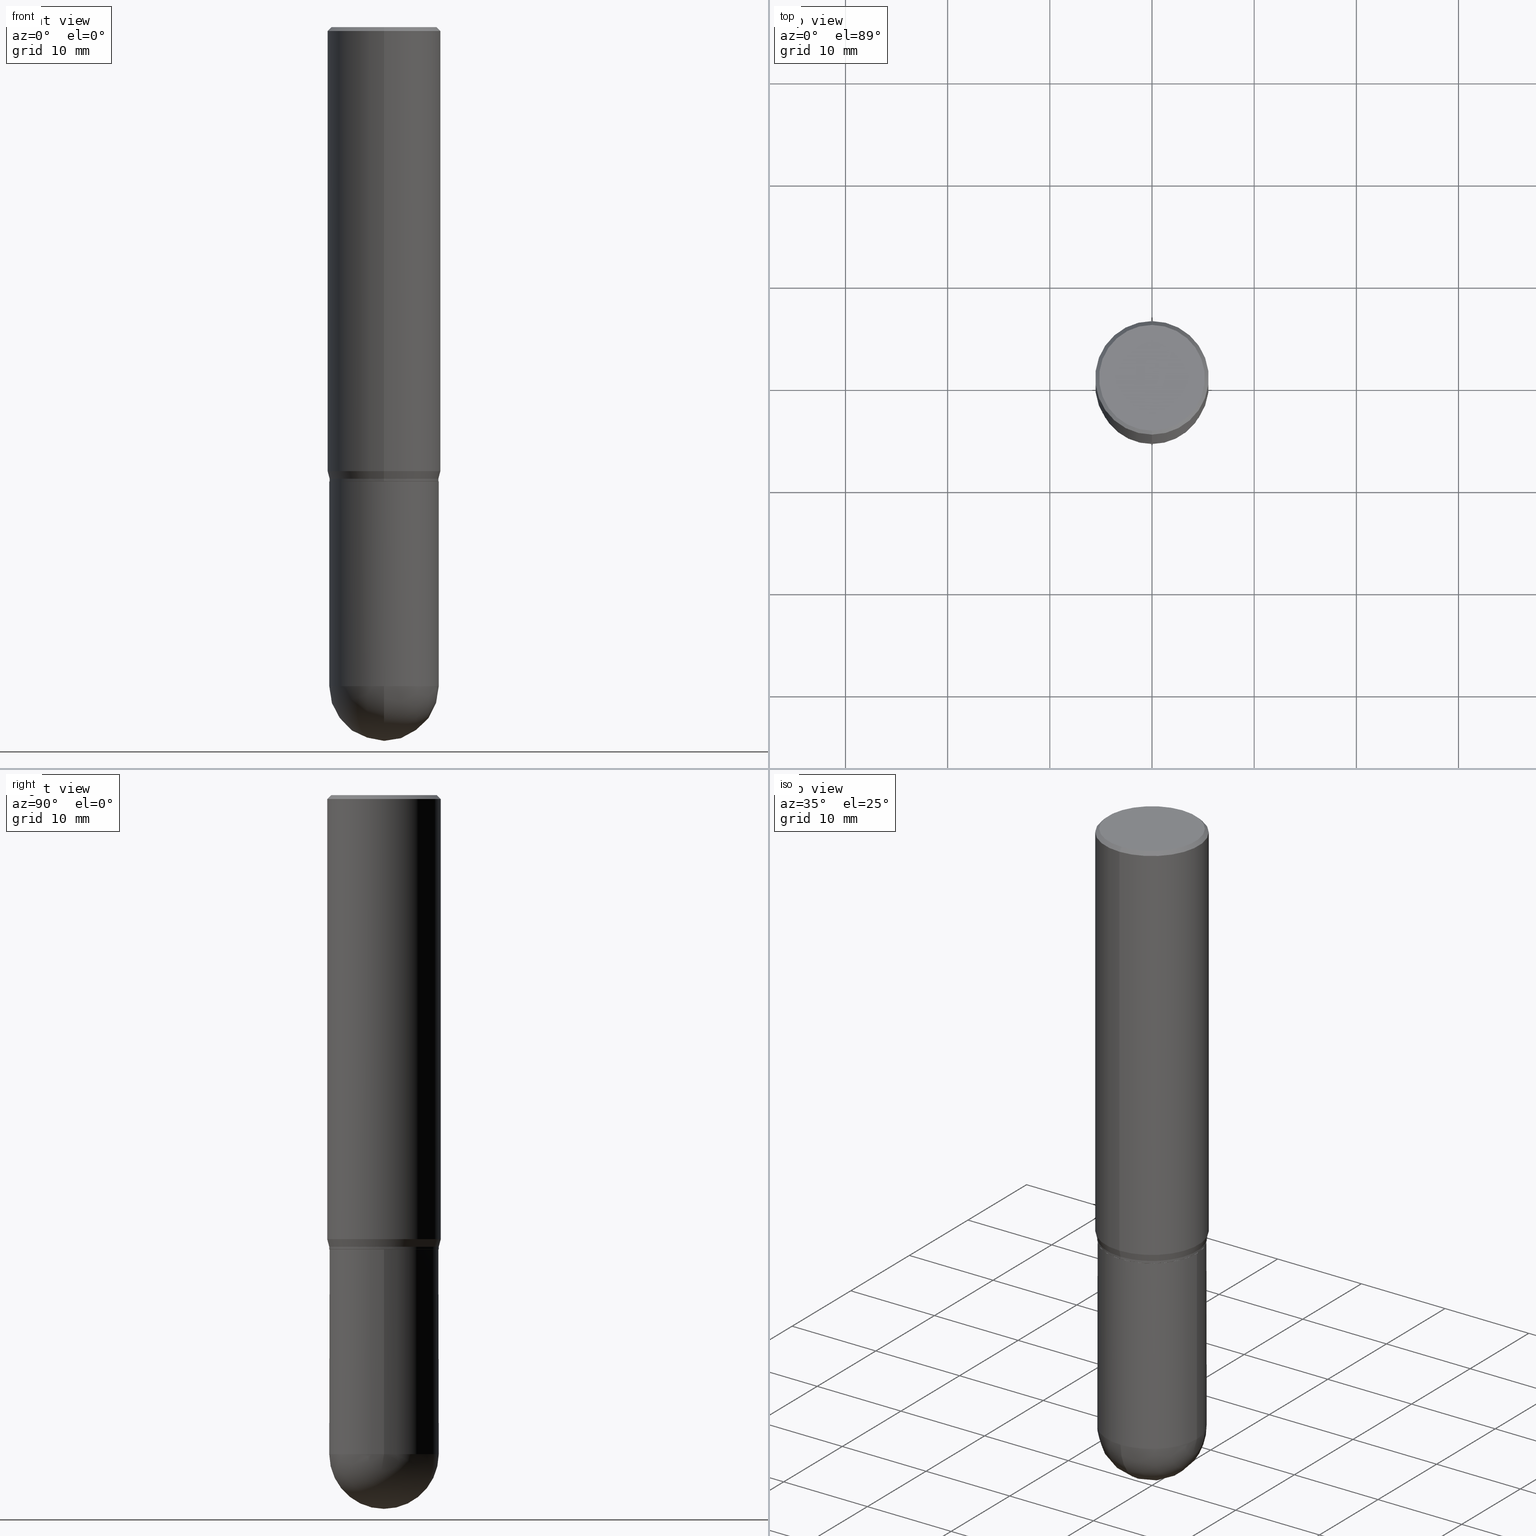
[diagram: canonical four-view strip — front | top / right | iso, engineering-drawing reading convention]
A machine part, canonical four-view strip (front | top / right | iso — engineering-drawing reading convention). The complete STEP part file that produces these views, byte-faithful:
ISO-10303-21;
HEADER;
FILE_DESCRIPTION (( 'STEP AP203' ),
    '1' );
FILE_NAME ('39054.STEP',
    '2024-03-08T12:44:04',
    ( '' ),
    ( '' ),
    'SwSTEP 2.0',
    'SolidWorks 2023',
    '' );
FILE_SCHEMA (( 'CONFIG_CONTROL_DESIGN' ));
ENDSEC;

DATA;
#1 = AXIS2_PLACEMENT_3D ( 'NONE', #122, #212, #287 ) ;
#2 = LOCAL_TIME ( 7, 44, 4.000000000000000000, #240 ) ;
#3 = DIRECTION ( 'NONE',  ( -2.445224538422357859E-29, 3.491831144182302259E-15, 1.000000000000000000 ) ) ;
#4 = DIRECTION ( 'NONE',  ( 1.000000000000000000, -6.982962677686265133E-15, 0.000000000000000000 ) ) ;
#5 = ORIENTED_EDGE ( 'NONE', *, *, #102, .F. ) ;
#6 = CARTESIAN_POINT ( 'NONE',  ( -1.527523085743870054E-15, -0.2187500000000000555, -0.01499999999999939403 ) ) ;
#7 = ORIENTED_EDGE ( 'NONE', *, *, #279, .F. ) ;
#8 = ADVANCED_FACE ( 'NONE', ( #235 ), #278, .T. ) ;
#9 = SECURITY_CLASSIFICATION_LEVEL ( 'unclassified' ) ;
#10 = ORIENTED_EDGE ( 'NONE', *, *, #472, .F. ) ;
#11 = CONICAL_SURFACE ( 'NONE', #66, 0.2104499999999999982, 0.7853981633974824739 ) ;
#12 = CARTESIAN_POINT ( 'NONE',  ( 3.667836807633575149E-31, -5.237746716273508633E-17, -0.01500000000000015730 ) ) ;
#13 = PERSON_AND_ORGANIZATION ( #94, #239 ) ;
#14 = FACE_OUTER_BOUND ( 'NONE', #366, .T. ) ;
#15 = ADVANCED_FACE ( 'NONE', ( #391 ), #79, .T. ) ;
#16 = LINE ( 'NONE', #330, #18 ) ;
#17 = APPROVAL_ROLE ( '' ) ;
#18 = VECTOR ( 'NONE', #491, 39.37007874015748854 ) ;
#19 = AXIS2_PLACEMENT_3D ( 'NONE', #478, #120, #349 ) ;
#20 = DIRECTION ( 'NONE',  ( -2.445224538422357859E-29, 3.491831144182302259E-15, 1.000000000000000000 ) ) ;
#21 = CC_DESIGN_PERSON_AND_ORGANIZATION_ASSIGNMENT ( #169, #332, ( #42 ) ) ;
#22 = FACE_OUTER_BOUND ( 'NONE', #436, .T. ) ;
#23 = ORIENTED_EDGE ( 'NONE', *, *, #29, .F. ) ;
#24 = DIRECTION ( 'NONE',  ( -6.982962677686266711E-15, -1.000000000000000000, 3.894295072935514223E-15 ) ) ;
#25 = ORIENTED_EDGE ( 'NONE', *, *, #458, .T. ) ;
#26 = VECTOR ( 'NONE', #277, 39.37007874015748143 ) ;
#27 = ORIENTED_EDGE ( 'NONE', *, *, #156, .F. ) ;
#28 = CARTESIAN_POINT ( 'NONE',  ( -1.500733937012521740E-15, -0.2187500000000000555, -0.01499999999999939403 ) ) ;
#29 = EDGE_CURVE ( 'NONE', #388, #317, #98, .T. ) ;
#30 = DIRECTION ( 'NONE',  ( 6.982962677686265922E-15, 1.000000000000000000, 0.000000000000000000 ) ) ;
#31 = FACE_OUTER_BOUND ( 'NONE', #304, .T. ) ;
#32 = AXIS2_PLACEMENT_3D ( 'NONE', #246, #403, #168 ) ;
#33 = AXIS2_PLACEMENT_3D ( 'NONE', #249, #327, #52 ) ;
#34 = LINE ( 'NONE', #310, #378 ) ;
#35 = ORIENTED_EDGE ( 'NONE', *, *, #50, .F. ) ;
#36 = EDGE_LOOP ( 'NONE', ( #428, #177, #207, #135 ) ) ;
#37 = EDGE_CURVE ( 'NONE', #288, #432, #153, .T. ) ;
#38 = CARTESIAN_POINT ( 'NONE',  ( 0.000000000000000000, 0.000000000000000000, 0.000000000000000000 ) ) ;
#39 = FACE_OUTER_BOUND ( 'NONE', #475, .T. ) ;
#40 = ORIENTED_EDGE ( 'NONE', *, *, #71, .F. ) ;
#41 = VECTOR ( 'NONE', #107, 39.37007874015748143 ) ;
#42 = PRODUCT_DEFINITION_FORMATION_WITH_SPECIFIED_SOURCE ( 'ANY', '', #211, .NOT_KNOWN. ) ;
#43 = DIRECTION ( 'NONE',  ( -6.982962677686265133E-15, -1.000000000000000000, 3.491831144182302259E-15 ) ) ;
#44 = ORIENTED_EDGE ( 'NONE', *, *, #71, .T. ) ;
#45 = CC_DESIGN_PERSON_AND_ORGANIZATION_ASSIGNMENT ( #490, #452, ( #512 ) ) ;
#46 = ORIENTED_EDGE ( 'NONE', *, *, #354, .T. ) ;
#47 = PERSON_AND_ORGANIZATION ( #94, #239 ) ;
#48 = CARTESIAN_POINT ( 'NONE',  ( 1.554312234475260769E-15, 0.2187499999999940603, -1.710890003700963558 ) ) ;
#49 = AXIS2_PLACEMENT_3D ( 'NONE', #360, #453, #363 ) ;
#50 = EDGE_CURVE ( 'NONE', #152, #288, #70, .T. ) ;
#51 = LINE ( 'NONE', #244, #181 ) ;
#52 = DIRECTION ( 'NONE',  ( 1.000000000000000000, 0.000000000000000000, 0.000000000000000000 ) ) ;
#53 = CARTESIAN_POINT ( 'NONE',  ( 1.473055976857960361E-15, 0.2109499999999938924, -1.750000000000000666 ) ) ;
#54 = VERTEX_POINT ( 'NONE', #154 ) ;
#55 = APPROVAL_DATE_TIME ( #359, #150 ) ;
#56 = FACE_OUTER_BOUND ( 'NONE', #36, .T. ) ;
#57 = AXIS2_PLACEMENT_3D ( 'NONE', #161, #193, #511 ) ;
#58 = FACE_OUTER_BOUND ( 'NONE', #350, .T. ) ;
#59 = CC_DESIGN_APPROVAL ( #189, ( #42 ) ) ;
#60 = PRODUCT_RELATED_PRODUCT_CATEGORY ( 'detail', '', ( #211 ) ) ;
#61 = DIRECTION ( 'NONE',  ( -2.445224538422357859E-29, 3.491831144182302259E-15, 1.000000000000000000 ) ) ;
#62 = VERTEX_POINT ( 'NONE', #116 ) ;
#63 = CYLINDRICAL_SURFACE ( 'NONE', #213, 0.2109499999999999431 ) ;
#64 = CARTESIAN_POINT ( 'NONE',  ( 1.422778645578576487E-15, 0.2037499999999999867, -7.900074826925052850E-16 ) ) ;
#65 = EDGE_CURVE ( 'NONE', #62, #215, #506, .T. ) ;
#66 = AXIS2_PLACEMENT_3D ( 'NONE', #259, #375, #24 ) ;
#67 = CARTESIAN_POINT ( 'NONE',  ( 4.183510219591112166E-29, -5.974138999193196321E-15, -1.710890003700962669 ) ) ;
#68 = CARTESIAN_POINT ( 'NONE',  ( -0.2109500000000000541, 1.498889901085931727E-15, -1.037649357289272662E-29 ) ) ;
#69 = ORIENTED_EDGE ( 'NONE', *, *, #318, .T. ) ;
#70 = CIRCLE ( 'NONE', #57, 0.2109499999999999431 ) ;
#71 = EDGE_CURVE ( 'NONE', #432, #54, #221, .T. ) ;
#72 = AXIS2_PLACEMENT_3D ( 'NONE', #219, #455, #505 ) ;
#73 = ORIENTED_EDGE ( 'NONE', *, *, #298, .F. ) ;
#74 =( CONVERSION_BASED_UNIT ( 'INCH', #229 ) LENGTH_UNIT ( ) NAMED_UNIT ( #179 ) );
#75 = ORIENTED_EDGE ( 'NONE', *, *, #202, .F. ) ;
#76 = ORIENTED_EDGE ( 'NONE', *, *, #65, .T. ) ;
#77 = CARTESIAN_POINT ( 'NONE',  ( -0.2109500000000000541, -5.988679117096665555E-15, -2.539050000000000473 ) ) ;
#78 = DESIGN_CONTEXT ( 'detailed design', #444, 'design' ) ;
#79 = CYLINDRICAL_SURFACE ( 'NONE', #173, 0.2109499999999999431 ) ;
#80 = ADVANCED_FACE ( 'NONE', ( #58 ), #473, .T. ) ;
#81 = LOCAL_TIME ( 7, 44, 4.000000000000000000, #172 ) ;
#82 = DIRECTION ( 'NONE',  ( -1.807323732225332111E-15, -0.2588190451025184635, 0.9659258262890689783 ) ) ;
#83 = ORIENTED_EDGE ( 'NONE', *, *, #302, .F. ) ;
#84 = CARTESIAN_POINT ( 'NONE',  ( 3.667836807633575149E-31, -5.237746716273508633E-17, -0.01500000000000015730 ) ) ;
#85 = COORDINATED_UNIVERSAL_TIME_OFFSET ( 5, 0, .BEHIND. ) ;
#86 = PLANE ( 'NONE',  #429 ) ;
#87 = EDGE_CURVE ( 'NONE', #186, #266, #494, .T. ) ;
#88 = PERSON_AND_ORGANIZATION ( #94, #239 ) ;
#89 = CIRCLE ( 'NONE', #204, 0.2037499999999999867 ) ;
#90 = AXIS2_PLACEMENT_3D ( 'NONE', #195, #3, #43 ) ;
#91 = DIRECTION ( 'NONE',  ( -2.445224538422357859E-29, 3.491831144182302259E-15, 1.000000000000000000 ) ) ;
#92 = APPROVAL_DATE_TIME ( #243, #189 ) ;
#93 = CARTESIAN_POINT ( 'NONE',  ( -1.498889901085869604E-15, -0.2109500000000089637, -2.539049999999999585 ) ) ;
#94 = PERSON ( 'UNSPECIFIED', 'UNSPECIFIED', 'UNSPECIFIED', ('UNSPECIFIED'), ('UNSPECIFIED'), ('UNSPECIFIED') ) ;
#95 = FACE_OUTER_BOUND ( 'NONE', #417, .T. ) ;
#96 = CC_DESIGN_PERSON_AND_ORGANIZATION_ASSIGNMENT ( #13, #445, ( #42 ) ) ;
#97 = ORIENTED_EDGE ( 'NONE', *, *, #250, .T. ) ;
#98 = CIRCLE ( 'NONE', #447, 0.2109500000000000541 ) ;
#99 = CARTESIAN_POINT ( 'NONE',  ( 3.841295513378218841E-45, -5.485449330667966736E-31, -1.570937741307224074E-16 ) ) ;
#100 = AXIS2_PLACEMENT_3D ( 'NONE', #99, #258, #457 ) ;
#101 = CARTESIAN_POINT ( 'NONE',  ( 1.554312234475260966E-15, 0.2187499999999999167, -0.01500000000000092232 ) ) ;
#102 = EDGE_CURVE ( 'NONE', #111, #388, #345, .T. ) ;
#103 = CARTESIAN_POINT ( 'NONE',  ( 6.191127839474132236E-29, -8.890879617617701491E-15, -2.539049999999999585 ) ) ;
#104 = CARTESIAN_POINT ( 'NONE',  ( 1.498889901085973931E-15, 0.2109499999999939202, -1.749500000000000721 ) ) ;
#105 = ORIENTED_EDGE ( 'NONE', *, *, #171, .T. ) ;
#106 = EDGE_LOOP ( 'NONE', ( #184, #105, #201, #471, #439 ) ) ;
#107 = DIRECTION ( 'NONE',  ( -2.445468806185136877E-29, 3.491481338843145188E-15, 1.000000000000000000 ) ) ;
#108 = LINE ( 'NONE', #319, #430 ) ;
#109 = ORIENTED_EDGE ( 'NONE', *, *, #218, .F. ) ;
#110 = ADVANCED_FACE ( 'NONE', ( #14 ), #282, .T. ) ;
#111 = VERTEX_POINT ( 'NONE', #93 ) ;
#112 = VERTEX_POINT ( 'NONE', #333 ) ;
#113 = VECTOR ( 'NONE', #228, 39.37007874015748143 ) ;
#114 = APPROVAL_PERSON_ORGANIZATION ( #88, #150, #357 ) ;
#115 = LINE ( 'NONE', #384, #290 ) ;
#116 = CARTESIAN_POINT ( 'NONE',  ( 0.2109499999999999986, -7.583148319833423025E-15, -1.750000000000000000 ) ) ;
#117 = EDGE_CURVE ( 'NONE', #432, #186, #51, .T. ) ;
#118 = CARTESIAN_POINT ( 'NONE',  ( 6.209167572344372023E-29, -8.865045693389689499E-15, -2.539050000000000473 ) ) ;
#119 = ORIENTED_EDGE ( 'NONE', *, *, #312, .T. ) ;
#120 = DIRECTION ( 'NONE',  ( -2.445224538422357859E-29, 3.491831144182302259E-15, 1.000000000000000000 ) ) ;
#121 = EDGE_LOOP ( 'NONE', ( #227, #230, #371, #269 ) ) ;
#122 = CARTESIAN_POINT ( 'NONE',  ( 4.254690696854903488E-29, -6.075786190877206191E-15, -1.739999999999999991 ) ) ;
#123 = AXIS2_PLACEMENT_3D ( 'NONE', #274, #320, #479 ) ;
#124 = CIRCLE ( 'NONE', #422, 0.2104499999999999982 ) ;
#125 = DIRECTION ( 'NONE',  ( -2.445468806185136597E-29, 3.491481338843145583E-15, 1.000000000000000000 ) ) ;
#126 = CALENDAR_DATE ( 2024, 8, 3 ) ;
#127 = CARTESIAN_POINT ( 'NONE',  ( -1.527523085743870449E-15, -0.2187500000000000000, 7.638380627898786315E-16 ) ) ;
#128 = ADVANCED_FACE ( 'NONE', ( #56 ), #206, .T. ) ;
#129 = PERSON_AND_ORGANIZATION ( #94, #239 ) ;
#130 = DIRECTION ( 'NONE',  ( 6.982962677686265133E-15, 1.000000000000000000, -3.492862791899308071E-15 ) ) ;
#131 = PERSON_AND_ORGANIZATION_ROLE ( 'classification_officer' ) ;
#132 = LINE ( 'NONE', #127, #395 ) ;
#133 = CALENDAR_DATE ( 2024, 8, 3 ) ;
#134 = CC_DESIGN_PERSON_AND_ORGANIZATION_ASSIGNMENT ( #129, #485, ( #211 ) ) ;
#135 = ORIENTED_EDGE ( 'NONE', *, *, #498, .F. ) ;
#136 = DIRECTION ( 'NONE',  ( -6.982962677686266711E-15, -1.000000000000000000, 3.894295072935514223E-15 ) ) ;
#137 = ORIENTED_EDGE ( 'NONE', *, *, #312, .F. ) ;
#138 = CONICAL_SURFACE ( 'NONE', #261, 0.2187500000000000000, 0.7853981633974485010 ) ;
#139 = DIRECTION ( 'NONE',  ( -6.982962677686265133E-15, -1.000000000000000000, 3.492862791899308071E-15 ) ) ;
#140 = CIRCLE ( 'NONE', #438, 0.2109499999999999431 ) ;
#141 = CONICAL_SURFACE ( 'NONE', #456, 0.2187500000000000000, 0.7853981633974485010 ) ;
#142 = PLANE ( 'NONE',  #338 ) ;
#143 = VERTEX_POINT ( 'NONE', #253 ) ;
#144 = DIRECTION ( 'NONE',  ( -6.982962677686265133E-15, -1.000000000000000000, 3.492862791899308071E-15 ) ) ;
#145 = ORIENTED_EDGE ( 'NONE', *, *, #263, .T. ) ;
#146 = CARTESIAN_POINT ( 'NONE',  ( 0.2109500000000000541, -1.473055976857918157E-15, 1.028629490854152908E-29 ) ) ;
#147 = APPROVAL_PERSON_ORGANIZATION ( #47, #189, #17 ) ;
#148 = VECTOR ( 'NONE', #82, 39.37007874015748854 ) ;
#149 = DIRECTION ( 'NONE',  ( -2.445224538422357859E-29, 3.491831144182302653E-15, 1.000000000000000000 ) ) ;
#150 = APPROVAL ( #402, 'UNSPECIFIED' ) ;
#151 =( NAMED_UNIT ( * ) SI_UNIT ( $, .STERADIAN. ) SOLID_ANGLE_UNIT ( ) );
#152 = VERTEX_POINT ( 'NONE', #295 ) ;
#153 = LINE ( 'NONE', #309, #323 ) ;
#154 = CARTESIAN_POINT ( 'NONE',  ( -1.473055976857874769E-15, -0.2109500000000060216, -1.739999999999999103 ) ) ;
#155 = AXIS2_PLACEMENT_3D ( 'NONE', #450, #502, #139 ) ;
#156 = EDGE_CURVE ( 'NONE', #186, #381, #238, .T. ) ;
#157 = CIRCLE ( 'NONE', #353, 0.2109500000000001096 ) ;
#158 = CYLINDRICAL_SURFACE ( 'NONE', #223, 0.2187500000000000000 ) ;
#159 = VERTEX_POINT ( 'NONE', #328 ) ;
#160 = DIRECTION ( 'NONE',  ( -6.982962677686265133E-15, -1.000000000000000000, 3.885064698266314873E-15 ) ) ;
#161 = CARTESIAN_POINT ( 'NONE',  ( 4.277920329969914621E-29, -6.108958586746937238E-15, -1.749500000000000055 ) ) ;
#162 = DATE_AND_TIME ( #406, #307 ) ;
#163 = DIRECTION ( 'NONE',  ( 1.839019923739602287E-15, 0.2588190451025252359, 0.9659258262890670910 ) ) ;
#164 = CIRCLE ( 'NONE', #49, 0.2109500000000000541 ) ;
#165 = CC_DESIGN_SECURITY_CLASSIFICATION ( #324, ( #42 ) ) ;
#166 = DIRECTION ( 'NONE',  ( 2.445224538422357859E-29, -3.491831144182302259E-15, -1.000000000000000000 ) ) ;
#167 = ADVANCED_FACE ( 'NONE', ( #441 ), #138, .T. ) ;
#168 = DIRECTION ( 'NONE',  ( -6.982962677686265133E-15, -1.000000000000000000, 3.746534391310989557E-15 ) ) ;
#169 = PERSON_AND_ORGANIZATION ( #94, #239 ) ;
#170 = CARTESIAN_POINT ( 'NONE',  ( 4.254690696854903488E-29, -6.075786190877206191E-15, -1.739999999999999991 ) ) ;
#171 = EDGE_CURVE ( 'NONE', #419, #111, #164, .T. ) ;
#172 = COORDINATED_UNIVERSAL_TIME_OFFSET ( 5, 0, .BEHIND. ) ;
#173 = AXIS2_PLACEMENT_3D ( 'NONE', #38, #352, #348 ) ;
#174 = CARTESIAN_POINT ( 'NONE',  ( 1.554312234475218762E-15, 0.2187500000000000000, -7.638380627898786315E-16 ) ) ;
#175 = CLOSED_SHELL ( 'NONE', ( #8, #128, #183, #110, #426 ) ) ;
#176 = CARTESIAN_POINT ( 'NONE',  ( -1.527523085743828442E-15, -0.2187500000000059397, -1.710890003700962003 ) ) ;
#177 = ORIENTED_EDGE ( 'NONE', *, *, #377, .T. ) ;
#178 = LINE ( 'NONE', #146, #41 ) ;
#179 = DIMENSIONAL_EXPONENTS ( 1.000000000000000000, 0.000000000000000000, 0.000000000000000000, 0.000000000000000000, 0.000000000000000000, 0.000000000000000000, 0.000000000000000000 ) ;
#180 = ORIENTED_EDGE ( 'NONE', *, *, #87, .F. ) ;
#181 = VECTOR ( 'NONE', #163, 39.37007874015748143 ) ;
#182 = DIRECTION ( 'NONE',  ( -2.445468806185136597E-29, 3.491481338843145583E-15, 1.000000000000000000 ) ) ;
#183 = ADVANCED_FACE ( 'NONE', ( #95 ), #86, .F. ) ;
#184 = ORIENTED_EDGE ( 'NONE', *, *, #354, .F. ) ;
#185 = CARTESIAN_POINT ( 'NONE',  ( 0.000000000000000000, 0.000000000000000000, 0.000000000000000000 ) ) ;
#186 = VERTEX_POINT ( 'NONE', #48 ) ;
#187 = ORIENTED_EDGE ( 'NONE', *, *, #65, .F. ) ;
#188 = DIRECTION ( 'NONE',  ( -6.982962677686265922E-15, -1.000000000000000000, 3.491831144182302653E-15 ) ) ;
#189 = APPROVAL ( #325, 'UNSPECIFIED' ) ;
#190 = ORIENTED_EDGE ( 'NONE', *, *, #458, .F. ) ;
#191 = LINE ( 'NONE', #470, #148 ) ;
#192 = VERTEX_POINT ( 'NONE', #209 ) ;
#193 = DIRECTION ( 'NONE',  ( -2.445224538422357859E-29, 3.491831144182302259E-15, 1.000000000000000000 ) ) ;
#194 = ADVANCED_FACE ( 'NONE', ( #203 ), #141, .T. ) ;
#195 = CARTESIAN_POINT ( 'NONE',  ( 0.000000000000000000, 0.000000000000000000, 0.000000000000000000 ) ) ;
#196 = EDGE_LOOP ( 'NONE', ( #7, #397 ) ) ;
#197 = CIRCLE ( 'NONE', #255, 0.2109499999999999431 ) ;
#198 = DIRECTION ( 'NONE',  ( -2.445468806185136597E-29, 3.491481338843145583E-15, 1.000000000000000000 ) ) ;
#199 = DIRECTION ( 'NONE',  ( -2.445224538422357859E-29, 3.491831144182302653E-15, 1.000000000000000000 ) ) ;
#200 = APPROVAL_STATUS ( 'not_yet_approved' ) ;
#201 = ORIENTED_EDGE ( 'NONE', *, *, #102, .T. ) ;
#202 = EDGE_CURVE ( 'NONE', #159, #469, #89, .T. ) ;
#203 = FACE_OUTER_BOUND ( 'NONE', #121, .T. ) ;
#204 = AXIS2_PLACEMENT_3D ( 'NONE', #326, #91, #486 ) ;
#205 = CONICAL_SURFACE ( 'NONE', #507, 0.2109499999999999431, 0.2617993877991505736 ) ;
#206 = SPHERICAL_SURFACE ( 'NONE', #413, 0.2109500000000001096 ) ;
#207 = ORIENTED_EDGE ( 'NONE', *, *, #171, .F. ) ;
#208 = DATE_TIME_ROLE ( 'creation_date' ) ;
#209 = CARTESIAN_POINT ( 'NONE',  ( 1.497113544246573482E-15, 0.2104499999999938920, -1.750000000000000666 ) ) ;
#210 = EDGE_CURVE ( 'NONE', #381, #451, #132, .T. ) ;
#211 = PRODUCT ( '39054', '39054', '', ( #487 ) ) ;
#212 = DIRECTION ( 'NONE',  ( -2.445224538422357859E-29, 3.491831144182302259E-15, 1.000000000000000000 ) ) ;
#213 = AXIS2_PLACEMENT_3D ( 'NONE', #185, #61, #306 ) ;
#214 = AXIS2_PLACEMENT_3D ( 'NONE', #64, #222, #217 ) ;
#215 = VERTEX_POINT ( 'NONE', #365 ) ;
#216 = CARTESIAN_POINT ( 'NONE',  ( 6.209167572344372023E-29, -8.865045693389689499E-15, -2.539050000000000473 ) ) ;
#217 = DIRECTION ( 'NONE',  ( 6.982962677686265922E-15, 1.000000000000000000, -3.491831144182302653E-15 ) ) ;
#218 = EDGE_CURVE ( 'NONE', #192, #288, #16, .T. ) ;
#219 = CARTESIAN_POINT ( 'NONE',  ( 4.279142942239125763E-29, -6.110704502319029052E-15, -1.750000000000000000 ) ) ;
#220 = ORIENTED_EDGE ( 'NONE', *, *, #117, .T. ) ;
#221 = CIRCLE ( 'NONE', #1, 0.2109499999999999431 ) ;
#222 = DIRECTION ( 'NONE',  ( 2.445224538422357299E-29, -3.491831144182302653E-15, -1.000000000000000000 ) ) ;
#223 = AXIS2_PLACEMENT_3D ( 'NONE', #355, #316, #308 ) ;
#224 = CARTESIAN_POINT ( 'NONE',  ( 4.279570410823988484E-29, -6.110092342975504671E-15, -1.750000000000000000 ) ) ;
#225 = EDGE_CURVE ( 'NONE', #451, #266, #305, .T. ) ;
#226 = ORIENTED_EDGE ( 'NONE', *, *, #225, .F. ) ;
#227 = ORIENTED_EDGE ( 'NONE', *, *, #393, .F. ) ;
#228 = DIRECTION ( 'NONE',  ( -2.445468806185136877E-29, 3.491481338843145188E-15, 1.000000000000000000 ) ) ;
#229 = LENGTH_MEASURE_WITH_UNIT ( LENGTH_MEASURE( 0.02539999999999999897 ), #267 );
#230 = ORIENTED_EDGE ( 'NONE', *, *, #410, .T. ) ;
#231 = AXIS2_PLACEMENT_3D ( 'NONE', #67, #418, #465 ) ;
#232 = ORIENTED_EDGE ( 'NONE', *, *, #420, .T. ) ;
#233 = LOCAL_TIME ( 7, 44, 4.000000000000000000, #85 ) ;
#234 = DIRECTION ( 'NONE',  ( 1.000000000000000000, -6.982962677686265922E-15, 4.876176775795935793E-29 ) ) ;
#235 = FACE_OUTER_BOUND ( 'NONE', #347, .T. ) ;
#236 = FACE_OUTER_BOUND ( 'NONE', #293, .T. ) ;
#237 = ORIENTED_EDGE ( 'NONE', *, *, #29, .T. ) ;
#238 = CIRCLE ( 'NONE', #32, 0.2187500000000000000 ) ;
#239 = ORGANIZATION ( 'UNSPECIFIED', 'UNSPECIFIED', '' ) ;
#240 = COORDINATED_UNIVERSAL_TIME_OFFSET ( 5, 0, .BEHIND. ) ;
#241 = ORIENTED_EDGE ( 'NONE', *, *, #472, .T. ) ;
#242 = CC_DESIGN_DATE_AND_TIME_ASSIGNMENT ( #448, #493, ( #324 ) ) ;
#243 = DATE_AND_TIME ( #126, #233 ) ;
#244 = CARTESIAN_POINT ( 'NONE',  ( 1.498889901085973142E-15, 0.2109499999999938646, -1.740000000000000879 ) ) ;
#245 = CALENDAR_DATE ( 2024, 8, 3 ) ;
#246 = CARTESIAN_POINT ( 'NONE',  ( 4.183510219591112166E-29, -5.974138999193196321E-15, -1.710890003700962669 ) ) ;
#247 = CIRCLE ( 'NONE', #369, 0.2109499999999999986 ) ;
#248 = CIRCLE ( 'NONE', #100, 0.2037499999999999867 ) ;
#249 = CARTESIAN_POINT ( 'NONE',  ( 0.000000000000000000, 0.000000000000000000, 0.000000000000000000 ) ) ;
#250 = EDGE_CURVE ( 'NONE', #215, #62, #247, .T. ) ;
#251 = DIRECTION ( 'NONE',  ( 1.000000000000000000, -6.982962677686265133E-15, 0.000000000000000000 ) ) ;
#252 = COORDINATED_UNIVERSAL_TIME_OFFSET ( 5, 0, .BEHIND. ) ;
#253 = CARTESIAN_POINT ( 'NONE',  ( -1.469564495519032157E-15, -0.2104500000000061044, -1.749999999999999112 ) ) ;
#254 = DIRECTION ( 'NONE',  ( 2.438088387897960049E-29, -3.491481338843145188E-15, -1.000000000000000000 ) ) ;
#255 = AXIS2_PLACEMENT_3D ( 'NONE', #303, #497, #297 ) ;
#256 = APPROVAL_PERSON_ORGANIZATION ( #283, #484, #286 ) ;
#257 = EDGE_LOOP ( 'NONE', ( #343, #435, #73, #190 ) ) ;
#258 = DIRECTION ( 'NONE',  ( -2.445224538422357859E-29, 3.491831144182302259E-15, 1.000000000000000000 ) ) ;
#259 = CARTESIAN_POINT ( 'NONE',  ( 4.279142942239125763E-29, -6.110704502319029052E-15, -1.750000000000000000 ) ) ;
#260 = LINE ( 'NONE', #68, #113 ) ;
#261 = AXIS2_PLACEMENT_3D ( 'NONE', #84, #407, #400 ) ;
#262 = DIRECTION ( 'NONE',  ( -2.445224538422357859E-29, 3.491831144182302259E-15, 1.000000000000000000 ) ) ;
#263 = EDGE_CURVE ( 'NONE', #266, #451, #499, .T. ) ;
#264 = DIRECTION ( 'NONE',  ( 1.000000000000000000, -6.982962677686266711E-15, 0.000000000000000000 ) ) ;
#265 = CARTESIAN_POINT ( 'NONE',  ( -1.449280202029235538E-15, -0.2037499999999999867, 5.543668214964218588E-16 ) ) ;
#266 = VERTEX_POINT ( 'NONE', #101 ) ;
#267 =( LENGTH_UNIT ( ) NAMED_UNIT ( * ) SI_UNIT ( $, .METRE. ) );
#268 = AXIS2_PLACEMENT_3D ( 'NONE', #342, #503, #30 ) ;
#269 = ORIENTED_EDGE ( 'NONE', *, *, #420, .F. ) ;
#270 = CC_DESIGN_APPROVAL ( #484, ( #512 ) ) ;
#271 = ORIENTED_EDGE ( 'NONE', *, *, #210, .T. ) ;
#272 = ADVANCED_FACE ( 'NONE', ( #425 ), #63, .T. ) ;
#273 = DIRECTION ( 'NONE',  ( 1.000000000000000000, -6.982962677686265133E-15, 0.000000000000000000 ) ) ;
#274 = CARTESIAN_POINT ( 'NONE',  ( 4.279570410823988484E-29, -6.110092342975504671E-15, -1.750000000000000000 ) ) ;
#275 = DIRECTION ( 'NONE',  ( -4.937700262164715281E-15, -0.7071067811865691111, 0.7071067811865257013 ) ) ;
#276 = ORIENTED_EDGE ( 'NONE', *, *, #498, .T. ) ;
#277 = DIRECTION ( 'NONE',  ( -4.851104656540965064E-15, -0.7071067811865501263, -0.7071067811865449082 ) ) ;
#278 = CYLINDRICAL_SURFACE ( 'NONE', #280, 0.2109500000000000541 ) ;
#279 = EDGE_CURVE ( 'NONE', #143, #192, #289, .T. ) ;
#280 = AXIS2_PLACEMENT_3D ( 'NONE', #358, #477, #234 ) ;
#281 = CLOSED_SHELL ( 'NONE', ( #15, #285, #194, #466, #80, #489, #434, #167, #401, #341, #449, #272 ) ) ;
#282 = SPHERICAL_SURFACE ( 'NONE', #433, 0.2109500000000001096 ) ;
#283 = PERSON_AND_ORGANIZATION ( #94, #239 ) ;
#284 = DIRECTION ( 'NONE',  ( 6.982962677686265133E-15, 1.000000000000000000, -2.590043132177541277E-15 ) ) ;
#285 = ADVANCED_FACE ( 'NONE', ( #22 ), #11, .T. ) ;
#286 = APPROVAL_ROLE ( '' ) ;
#287 = DIRECTION ( 'NONE',  ( -6.982962677686265133E-15, -1.000000000000000000, 3.885064698266314873E-15 ) ) ;
#288 = VERTEX_POINT ( 'NONE', #104 ) ;
#289 = CIRCLE ( 'NONE', #72, 0.2104499999999999982 ) ;
#290 = VECTOR ( 'NONE', #508, 39.37007874015748143 ) ;
#291 = DIRECTION ( 'NONE',  ( -2.445224538422357859E-29, 3.491831144182302259E-15, 1.000000000000000000 ) ) ;
#292 = ORIENTED_EDGE ( 'NONE', *, *, #393, .T. ) ;
#293 = EDGE_LOOP ( 'NONE', ( #119, #409, #226, #382 ) ) ;
#294 = CALENDAR_DATE ( 2024, 8, 3 ) ;
#295 = CARTESIAN_POINT ( 'NONE',  ( -1.473055976857874375E-15, -0.2109500000000059383, -1.749499999999999167 ) ) ;
#296 = EDGE_LOOP ( 'NONE', ( #356, #496, #25, #40 ) ) ;
#297 = DIRECTION ( 'NONE',  ( -6.982962677686265133E-15, -1.000000000000000000, 3.885064698266314873E-15 ) ) ;
#298 = EDGE_CURVE ( 'NONE', #54, #432, #197, .T. ) ;
#299 = ORIENTED_EDGE ( 'NONE', *, *, #279, .T. ) ;
#300 = CARTESIAN_POINT ( 'NONE',  ( 4.279142942239125763E-29, -6.110704502319029052E-15, -1.750000000000000000 ) ) ;
#301 = DIRECTION ( 'NONE',  ( -2.445224538422357859E-29, 3.491831144182302259E-15, 1.000000000000000000 ) ) ;
#302 = EDGE_CURVE ( 'NONE', #388, #62, #178, .T. ) ;
#303 = CARTESIAN_POINT ( 'NONE',  ( 4.254690696854903488E-29, -6.075786190877206191E-15, -1.739999999999999991 ) ) ;
#304 = EDGE_LOOP ( 'NONE', ( #109, #454, #373, #415 ) ) ;
#305 = CIRCLE ( 'NONE', #155, 0.2187500000000000000 ) ;
#306 = DIRECTION ( 'NONE',  ( -6.982962677686265133E-15, -1.000000000000000000, 3.491831144182302259E-15 ) ) ;
#307 = LOCAL_TIME ( 7, 44, 4.000000000000000000, #252 ) ;
#308 = DIRECTION ( 'NONE',  ( -6.982962677686265133E-15, -1.000000000000000000, 3.491831144182302259E-15 ) ) ;
#309 = CARTESIAN_POINT ( 'NONE',  ( 1.498889901085930741E-15, 0.2109499999999999431, -7.366017798652564963E-16 ) ) ;
#310 = CARTESIAN_POINT ( 'NONE',  ( -1.469564495519032157E-15, -0.2104500000000061044, -1.749999999999999112 ) ) ;
#311 = EDGE_LOOP ( 'NONE', ( #399, #44, #241, #27 ) ) ;
#312 = EDGE_CURVE ( 'NONE', #381, #186, #492, .T. ) ;
#313 = APPLICATION_PROTOCOL_DEFINITION ( 'international standard', 'config_control_design', 1994, #334 ) ;
#314 = EDGE_LOOP ( 'NONE', ( #461, #75, #232, #145 ) ) ;
#315 = CONICAL_SURFACE ( 'NONE', #19, 0.2104499999999999982, 0.7853981633974824739 ) ;
#316 = DIRECTION ( 'NONE',  ( -2.445224538422357859E-29, 3.491831144182302259E-15, 1.000000000000000000 ) ) ;
#317 = VERTEX_POINT ( 'NONE', #340 ) ;
#318 = EDGE_CURVE ( 'NONE', #112, #317, #404, .T. ) ;
#319 = CARTESIAN_POINT ( 'NONE',  ( -1.473055976857917171E-15, -0.2109499999999999431, 7.366017798652564963E-16 ) ) ;
#320 = DIRECTION ( 'NONE',  ( -2.445468806185136597E-29, 3.491481338843145583E-15, 1.000000000000000000 ) ) ;
#321 = APPLICATION_PROTOCOL_DEFINITION ( 'international standard', 'config_control_design', 1994, #444 ) ;
#322 = DIRECTION ( 'NONE',  ( -1.000000000000000000, 6.982962677686265133E-15, -4.883557194083112340E-29 ) ) ;
#323 = VECTOR ( 'NONE', #199, 39.37007874015748143 ) ;
#324 = SECURITY_CLASSIFICATION ( '', '', #9 ) ;
#325 = APPROVAL_STATUS ( 'not_yet_approved' ) ;
#326 = CARTESIAN_POINT ( 'NONE',  ( 3.841295513378218841E-45, -5.485449330667966736E-31, -1.570937741307224074E-16 ) ) ;
#327 = DIRECTION ( 'NONE',  ( 0.000000000000000000, 0.000000000000000000, 1.000000000000000000 ) ) ;
#328 = CARTESIAN_POINT ( 'NONE',  ( 1.475150865661223764E-15, 0.2037499999999999867, -8.685543697578665257E-16 ) ) ;
#329 = APPROVAL_DATE_TIME ( #162, #484 ) ;
#330 = CARTESIAN_POINT ( 'NONE',  ( 1.495337187407173427E-15, 0.2104499999999938920, -1.750000000000000666 ) ) ;
#331 = CC_DESIGN_APPROVAL ( #150, ( #324 ) ) ;
#332 = PERSON_AND_ORGANIZATION_ROLE ( 'design_supplier' ) ;
#333 = CARTESIAN_POINT ( 'NONE',  ( 6.716019350574006308E-29, -9.614490643932656644E-15, -2.750000000000000000 ) ) ;
#334 = APPLICATION_CONTEXT ( 'configuration controlled 3d designs of mechanical parts and assemblies' ) ;
#335 = CC_DESIGN_PERSON_AND_ORGANIZATION_ASSIGNMENT ( #367, #131, ( #324 ) ) ;
#336 = DIRECTION ( 'NONE',  ( -6.982962677686265133E-15, -1.000000000000000000, 3.885064698266314873E-15 ) ) ;
#337 = FACE_OUTER_BOUND ( 'NONE', #196, .T. ) ;
#338 = AXIS2_PLACEMENT_3D ( 'NONE', #300, #495, #188 ) ;
#339 = ORIENTED_EDGE ( 'NONE', *, *, #156, .T. ) ;
#340 = CARTESIAN_POINT ( 'NONE',  ( 1.473055976857980082E-15, 0.2109499999999912001, -2.539050000000000917 ) ) ;
#341 = ADVANCED_FACE ( 'NONE', ( #337 ), #142, .F. ) ;
#342 = CARTESIAN_POINT ( 'NONE',  ( 6.191127839474132236E-29, -8.890879617617701491E-15, -2.539049999999999585 ) ) ;
#343 = ORIENTED_EDGE ( 'NONE', *, *, #50, .T. ) ;
#344 = CARTESIAN_POINT ( 'NONE',  ( 4.279142942239125763E-29, -6.110704502319029052E-15, -1.750000000000000000 ) ) ;
#345 = CIRCLE ( 'NONE', #463, 0.2109500000000000541 ) ;
#346 = CYLINDRICAL_SURFACE ( 'NONE', #405, 0.2109500000000000541 ) ;
#347 = EDGE_LOOP ( 'NONE', ( #276, #46, #187, #83, #237 ) ) ;
#348 = DIRECTION ( 'NONE',  ( -6.982962677686265133E-15, -1.000000000000000000, 3.491831144182302259E-15 ) ) ;
#349 = DIRECTION ( 'NONE',  ( -6.982962677686266711E-15, -1.000000000000000000, 3.894295072935514223E-15 ) ) ;
#350 = EDGE_LOOP ( 'NONE', ( #459, #220, #137, #10 ) ) ;
#351 = FACE_OUTER_BOUND ( 'NONE', #106, .T. ) ;
#352 = DIRECTION ( 'NONE',  ( -2.445224538422357859E-29, 3.491831144182302259E-15, 1.000000000000000000 ) ) ;
#353 = AXIS2_PLACEMENT_3D ( 'NONE', #103, #462, #423 ) ;
#354 = EDGE_CURVE ( 'NONE', #419, #215, #260, .T. ) ;
#355 = CARTESIAN_POINT ( 'NONE',  ( 0.000000000000000000, 0.000000000000000000, 0.000000000000000000 ) ) ;
#356 = ORIENTED_EDGE ( 'NONE', *, *, #37, .F. ) ;
#357 = APPROVAL_ROLE ( '' ) ;
#358 = CARTESIAN_POINT ( 'NONE',  ( 0.000000000000000000, 0.000000000000000000, 0.000000000000000000 ) ) ;
#359 = DATE_AND_TIME ( #294, #414 ) ;
#360 = CARTESIAN_POINT ( 'NONE',  ( 6.209167572344372023E-29, -8.865045693389689499E-15, -2.539050000000000473 ) ) ;
#361 = VECTOR ( 'NONE', #368, 39.37007874015748143 ) ;
#362 = COORDINATED_UNIVERSAL_TIME_OFFSET ( 5, 0, .BEHIND. ) ;
#363 = DIRECTION ( 'NONE',  ( 1.000000000000000000, -6.982962677686265133E-15, 0.000000000000000000 ) ) ;
#364 = EDGE_CURVE ( 'NONE', #288, #152, #140, .T. ) ;
#365 = CARTESIAN_POINT ( 'NONE',  ( -0.2109499999999999986, -5.988679117096665555E-15, -1.750000000000000000 ) ) ;
#366 = EDGE_LOOP ( 'NONE', ( #398, #69, #23, #5 ) ) ;
#367 = PERSON_AND_ORGANIZATION ( #94, #239 ) ;
#368 = DIRECTION ( 'NONE',  ( -2.445224538422357859E-29, 3.491831144182302653E-15, 1.000000000000000000 ) ) ;
#369 = AXIS2_PLACEMENT_3D ( 'NONE', #224, #182, #264 ) ;
#370 = CC_DESIGN_DATE_AND_TIME_ASSIGNMENT ( #442, #208, ( #512 ) ) ;
#371 = ORIENTED_EDGE ( 'NONE', *, *, #225, .T. ) ;
#372 = DIRECTION ( 'NONE',  ( -1.000000000000000000, 6.982962677686265133E-15, -4.883557194083112340E-29 ) ) ;
#373 = ORIENTED_EDGE ( 'NONE', *, *, #504, .T. ) ;
#374 = CARTESIAN_POINT ( 'NONE',  ( 3.667836807633575149E-31, -5.237746716273508633E-17, -0.01500000000000015730 ) ) ;
#375 = DIRECTION ( 'NONE',  ( -2.445224538422357859E-29, 3.491831144182302259E-15, 1.000000000000000000 ) ) ;
#376 = ORIENTED_EDGE ( 'NONE', *, *, #218, .T. ) ;
#377 = EDGE_CURVE ( 'NONE', #112, #111, #157, .T. ) ;
#378 = VECTOR ( 'NONE', #275, 39.37007874015748854 ) ;
#379 = ORIENTED_EDGE ( 'NONE', *, *, #263, .F. ) ;
#380 = LINE ( 'NONE', #28, #26 ) ;
#381 = VERTEX_POINT ( 'NONE', #176 ) ;
#382 = ORIENTED_EDGE ( 'NONE', *, *, #210, .F. ) ;
#383 = CARTESIAN_POINT ( 'NONE',  ( 4.277920329969914621E-29, -6.108958586746937238E-15, -1.749500000000000055 ) ) ;
#384 = CARTESIAN_POINT ( 'NONE',  ( 1.527523085743871040E-15, 0.2187499999999999167, -0.01500000000000092232 ) ) ;
#385 = EDGE_CURVE ( 'NONE', #192, #143, #124, .T. ) ;
#386 = AXIS2_PLACEMENT_3D ( 'NONE', #170, #291, #412 ) ;
#387 = CARTESIAN_POINT ( 'NONE',  ( 0.000000000000000000, 0.000000000000000000, 0.000000000000000000 ) ) ;
#388 = VERTEX_POINT ( 'NONE', #460 ) ;
#389 = MANIFOLD_SOLID_BREP ( 'Body-Move/Copy2[2]', #281 ) ;
#390 = MANIFOLD_SOLID_BREP ( 'Body-Move/Copy2[1]', #175 ) ;
#391 = FACE_OUTER_BOUND ( 'NONE', #257, .T. ) ;
#392 = ORIENTED_EDGE ( 'NONE', *, *, #504, .F. ) ;
#393 = EDGE_CURVE ( 'NONE', #469, #159, #248, .T. ) ;
#394 = CARTESIAN_POINT ( 'NONE',  ( 1.526601067780616758E-15, 0.2109499999999938646, -1.740000000000000879 ) ) ;
#395 = VECTOR ( 'NONE', #443, 39.37007874015748143 ) ;
#396 = UNCERTAINTY_MEASURE_WITH_UNIT (LENGTH_MEASURE( 1.000000000000000082E-05 ), #74, 'distance_accuracy_value', 'NONE');
#397 = ORIENTED_EDGE ( 'NONE', *, *, #385, .F. ) ;
#398 = ORIENTED_EDGE ( 'NONE', *, *, #377, .F. ) ;
#399 = ORIENTED_EDGE ( 'NONE', *, *, #117, .F. ) ;
#400 = DIRECTION ( 'NONE',  ( 6.982962677686265133E-15, 1.000000000000000000, -3.492862791899308071E-15 ) ) ;
#401 = ADVANCED_FACE ( 'NONE', ( #421 ), #416, .F. ) ;
#402 = APPROVAL_STATUS ( 'not_yet_approved' ) ;
#403 = DIRECTION ( 'NONE',  ( -2.445224538422357859E-29, 3.491831144182302259E-15, 1.000000000000000000 ) ) ;
#404 = CIRCLE ( 'NONE', #268, 0.2109500000000001096 ) ;
#405 = AXIS2_PLACEMENT_3D ( 'NONE', #387, #198, #468 ) ;
#406 = CALENDAR_DATE ( 2024, 8, 3 ) ;
#407 = DIRECTION ( 'NONE',  ( 2.445224538422357859E-29, -3.491831144182302259E-15, -1.000000000000000000 ) ) ;
#408 = CARTESIAN_POINT ( 'NONE',  ( 6.191127839474132236E-29, -8.890879617617701491E-15, -2.539049999999999585 ) ) ;
#409 = ORIENTED_EDGE ( 'NONE', *, *, #87, .T. ) ;
#410 = EDGE_CURVE ( 'NONE', #469, #451, #380, .T. ) ;
#411 = ORIENTED_EDGE ( 'NONE', *, *, #202, .T. ) ;
#412 = DIRECTION ( 'NONE',  ( -6.982962677686265133E-15, -1.000000000000000000, 3.885064698266314873E-15 ) ) ;
#413 = AXIS2_PLACEMENT_3D ( 'NONE', #408, #372, #483 ) ;
#414 = LOCAL_TIME ( 7, 44, 4.000000000000000000, #362 ) ;
#415 = ORIENTED_EDGE ( 'NONE', *, *, #364, .F. ) ;
#416 = PLANE ( 'NONE',  #214 ) ;
#417 = EDGE_LOOP ( 'NONE', ( #76, #97 ) ) ;
#418 = DIRECTION ( 'NONE',  ( -2.445224538422357859E-29, 3.491831144182302259E-15, 1.000000000000000000 ) ) ;
#419 = VERTEX_POINT ( 'NONE', #77 ) ;
#420 = EDGE_CURVE ( 'NONE', #159, #266, #115, .T. ) ;
#421 = FACE_OUTER_BOUND ( 'NONE', #501, .T. ) ;
#422 = AXIS2_PLACEMENT_3D ( 'NONE', #344, #301, #136 ) ;
#423 = DIRECTION ( 'NONE',  ( -7.105427357601001070E-15, -1.000000000000000000, 0.000000000000000000 ) ) ;
#424 = ADVANCED_BREP_SHAPE_REPRESENTATION ( '39054', ( #390, #389, #33 ), #500 ) ;
#425 = FACE_OUTER_BOUND ( 'NONE', #296, .T. ) ;
#426 = ADVANCED_FACE ( 'NONE', ( #351 ), #346, .T. ) ;
#427 = DIRECTION ( 'NONE',  ( -2.445224538422357859E-29, 3.491831144182302259E-15, 1.000000000000000000 ) ) ;
#428 = ORIENTED_EDGE ( 'NONE', *, *, #318, .F. ) ;
#429 = AXIS2_PLACEMENT_3D ( 'NONE', #53, #254, #488 ) ;
#430 = VECTOR ( 'NONE', #149, 39.37007874015748143 ) ;
#431 =( NAMED_UNIT ( * ) PLANE_ANGLE_UNIT ( ) SI_UNIT ( $, .RADIAN. ) );
#432 = VERTEX_POINT ( 'NONE', #394 ) ;
#433 = AXIS2_PLACEMENT_3D ( 'NONE', #446, #322, #284 ) ;
#434 = ADVANCED_FACE ( 'NONE', ( #39 ), #474, .T. ) ;
#435 = ORIENTED_EDGE ( 'NONE', *, *, #37, .T. ) ;
#436 = EDGE_LOOP ( 'NONE', ( #299, #376, #35, #392 ) ) ;
#437 = FACE_OUTER_BOUND ( 'NONE', #311, .T. ) ;
#438 = AXIS2_PLACEMENT_3D ( 'NONE', #383, #262, #336 ) ;
#439 = ORIENTED_EDGE ( 'NONE', *, *, #250, .F. ) ;
#440 = DIRECTION ( 'NONE',  ( -2.445468806185136597E-29, 3.491481338843145583E-15, 1.000000000000000000 ) ) ;
#441 = FACE_OUTER_BOUND ( 'NONE', #314, .T. ) ;
#442 = DATE_AND_TIME ( #245, #81 ) ;
#443 = DIRECTION ( 'NONE',  ( -2.445224538422357859E-29, 3.491831144182302653E-15, 1.000000000000000000 ) ) ;
#444 = APPLICATION_CONTEXT ( 'configuration controlled 3d designs of mechanical parts and assemblies' ) ;
#445 = PERSON_AND_ORGANIZATION_ROLE ( 'creator' ) ;
#446 = CARTESIAN_POINT ( 'NONE',  ( 6.191127839474132236E-29, -8.890879617617701491E-15, -2.539049999999999585 ) ) ;
#447 = AXIS2_PLACEMENT_3D ( 'NONE', #509, #440, #4 ) ;
#448 = DATE_AND_TIME ( #133, #2 ) ;
#449 = ADVANCED_FACE ( 'NONE', ( #31 ), #315, .T. ) ;
#450 = CARTESIAN_POINT ( 'NONE',  ( 3.667836807633575149E-31, -5.237746716273508633E-17, -0.01500000000000015730 ) ) ;
#451 = VERTEX_POINT ( 'NONE', #6 ) ;
#452 = PERSON_AND_ORGANIZATION_ROLE ( 'creator' ) ;
#453 = DIRECTION ( 'NONE',  ( -2.445468806185136597E-29, 3.491481338843145583E-15, 1.000000000000000000 ) ) ;
#454 = ORIENTED_EDGE ( 'NONE', *, *, #385, .T. ) ;
#455 = DIRECTION ( 'NONE',  ( -2.445224538422357859E-29, 3.491831144182302259E-15, 1.000000000000000000 ) ) ;
#456 = AXIS2_PLACEMENT_3D ( 'NONE', #12, #166, #130 ) ;
#457 = DIRECTION ( 'NONE',  ( -6.982962677686265133E-15, -1.000000000000000000, 3.491831144182301864E-15 ) ) ;
#458 = EDGE_CURVE ( 'NONE', #152, #54, #108, .T. ) ;
#459 = ORIENTED_EDGE ( 'NONE', *, *, #298, .T. ) ;
#460 = CARTESIAN_POINT ( 'NONE',  ( 0.2109500000000000541, -8.960624995040515044E-15, -2.539050000000000473 ) ) ;
#461 = ORIENTED_EDGE ( 'NONE', *, *, #410, .F. ) ;
#462 = DIRECTION ( 'NONE',  ( -1.000000000000000000, 7.105427357601001070E-15, -4.926315508542082329E-29 ) ) ;
#463 = AXIS2_PLACEMENT_3D ( 'NONE', #216, #125, #251 ) ;
#464 = AXIS2_PLACEMENT_3D ( 'NONE', #118, #510, #273 ) ;
#465 = DIRECTION ( 'NONE',  ( -6.982962677686265133E-15, -1.000000000000000000, 3.746534391310989557E-15 ) ) ;
#466 = ADVANCED_FACE ( 'NONE', ( #236 ), #158, .T. ) ;
#467 = PRODUCT_DEFINITION_SHAPE ( 'NONE', 'NONE',  #512 ) ;
#468 = DIRECTION ( 'NONE',  ( 1.000000000000000000, -6.982962677686265922E-15, 4.876176775795935793E-29 ) ) ;
#469 = VERTEX_POINT ( 'NONE', #265 ) ;
#470 = CARTESIAN_POINT ( 'NONE',  ( -1.473055976857874769E-15, -0.2109500000000060216, -1.739999999999999103 ) ) ;
#471 = ORIENTED_EDGE ( 'NONE', *, *, #302, .T. ) ;
#472 = EDGE_CURVE ( 'NONE', #54, #381, #191, .T. ) ;
#473 = CONICAL_SURFACE ( 'NONE', #386, 0.2109499999999999431, 0.2617993877991505736 ) ;
#474 = CYLINDRICAL_SURFACE ( 'NONE', #90, 0.2187500000000000000 ) ;
#475 = EDGE_LOOP ( 'NONE', ( #180, #339, #271, #379 ) ) ;
#476 = CARTESIAN_POINT ( 'NONE',  ( 4.254690696854903488E-29, -6.075786190877206191E-15, -1.739999999999999991 ) ) ;
#477 = DIRECTION ( 'NONE',  ( -2.445468806185136597E-29, 3.491481338843145583E-15, 1.000000000000000000 ) ) ;
#478 = CARTESIAN_POINT ( 'NONE',  ( 4.279142942239125763E-29, -6.110704502319029052E-15, -1.750000000000000000 ) ) ;
#479 = DIRECTION ( 'NONE',  ( 1.000000000000000000, -6.982962677686266711E-15, 0.000000000000000000 ) ) ;
#480 = SHAPE_DEFINITION_REPRESENTATION ( #467, #424 ) ;
#481 = AXIS2_PLACEMENT_3D ( 'NONE', #374, #20, #144 ) ;
#482 = CIRCLE ( 'NONE', #464, 0.2109500000000000541 ) ;
#483 = DIRECTION ( 'NONE',  ( 6.982962677686265133E-15, 1.000000000000000000, -2.590043132177541277E-15 ) ) ;
#484 = APPROVAL ( #200, 'UNSPECIFIED' ) ;
#485 = PERSON_AND_ORGANIZATION_ROLE ( 'design_owner' ) ;
#486 = DIRECTION ( 'NONE',  ( -6.982962677686265133E-15, -1.000000000000000000, 3.491831144182301864E-15 ) ) ;
#487 = MECHANICAL_CONTEXT ( 'NONE', #334, 'mechanical' ) ;
#488 = DIRECTION ( 'NONE',  ( -1.000000000000000000, 6.982962677686265922E-15, -4.876176775795935793E-29 ) ) ;
#489 = ADVANCED_FACE ( 'NONE', ( #437 ), #205, .T. ) ;
#490 = PERSON_AND_ORGANIZATION ( #94, #239 ) ;
#491 = DIRECTION ( 'NONE',  ( 5.024295867788231995E-15, 0.7071067811865739960, 0.7071067811865208164 ) ) ;
#492 = CIRCLE ( 'NONE', #231, 0.2187500000000000000 ) ;
#493 = DATE_TIME_ROLE ( 'classification_date' ) ;
#494 = LINE ( 'NONE', #174, #361 ) ;
#495 = DIRECTION ( 'NONE',  ( -2.445224538422357299E-29, 3.491831144182302653E-15, 1.000000000000000000 ) ) ;
#496 = ORIENTED_EDGE ( 'NONE', *, *, #364, .T. ) ;
#497 = DIRECTION ( 'NONE',  ( -2.445224538422357859E-29, 3.491831144182302259E-15, 1.000000000000000000 ) ) ;
#498 = EDGE_CURVE ( 'NONE', #317, #419, #482, .T. ) ;
#499 = CIRCLE ( 'NONE', #481, 0.2187500000000000000 ) ;
#500 =( GEOMETRIC_REPRESENTATION_CONTEXT ( 3 ) GLOBAL_UNCERTAINTY_ASSIGNED_CONTEXT ( ( #396 ) ) GLOBAL_UNIT_ASSIGNED_CONTEXT ( ( #74, #431, #151 ) ) REPRESENTATION_CONTEXT ( 'NONE', 'WORKASPACE' ) );
#501 = EDGE_LOOP ( 'NONE', ( #411, #292 ) ) ;
#502 = DIRECTION ( 'NONE',  ( -2.445224538422357859E-29, 3.491831144182302259E-15, 1.000000000000000000 ) ) ;
#503 = DIRECTION ( 'NONE',  ( 1.000000000000000000, -6.982962677686265922E-15, 4.883557194083112340E-29 ) ) ;
#504 = EDGE_CURVE ( 'NONE', #143, #152, #34, .T. ) ;
#505 = DIRECTION ( 'NONE',  ( -6.982962677686266711E-15, -1.000000000000000000, 3.894295072935514223E-15 ) ) ;
#506 = CIRCLE ( 'NONE', #123, 0.2109499999999999986 ) ;
#507 = AXIS2_PLACEMENT_3D ( 'NONE', #476, #427, #160 ) ;
#508 = DIRECTION ( 'NONE',  ( 4.937700262164548831E-15, 0.7071067811865452413, -0.7071067811865497932 ) ) ;
#509 = CARTESIAN_POINT ( 'NONE',  ( 6.209167572344372023E-29, -8.865045693389689499E-15, -2.539050000000000473 ) ) ;
#510 = DIRECTION ( 'NONE',  ( -2.445468806185136597E-29, 3.491481338843145583E-15, 1.000000000000000000 ) ) ;
#511 = DIRECTION ( 'NONE',  ( -6.982962677686265133E-15, -1.000000000000000000, 3.885064698266314873E-15 ) ) ;
#512 = PRODUCT_DEFINITION ( 'UNKNOWN', '', #42, #78 ) ;
ENDSEC;
END-ISO-10303-21;
